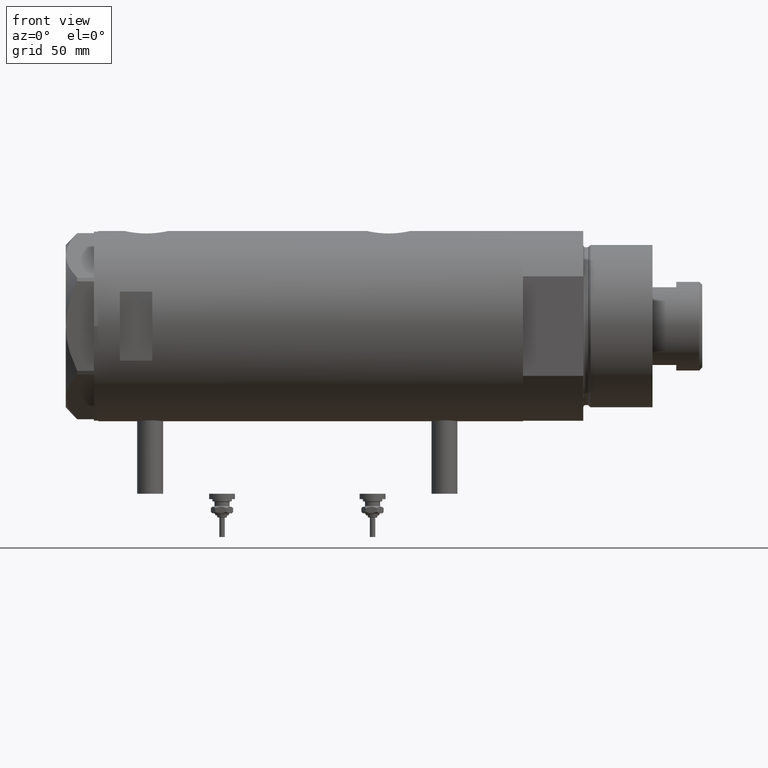
[diagram: clean part render]
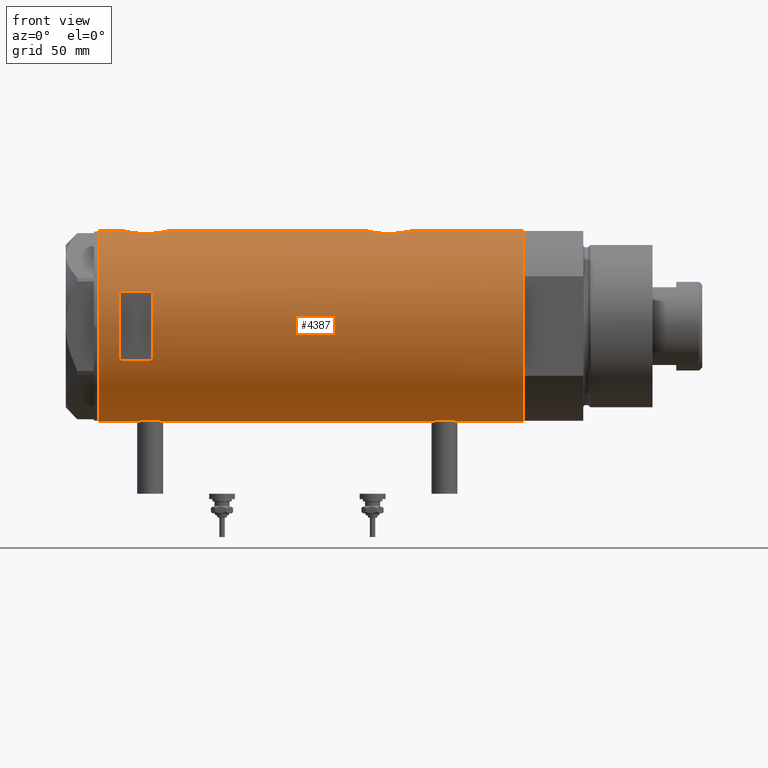
[diagram: same view with one face highlighted and labeled with its STEP entity id]
A machine part, front view. The second image highlights one B-rep face of the part: STEP entity #4387.
In plain terms, the highlighted cylindrical surface (partial cylindrical patch) has radius 44 mm, axis along (-1, -0, 0).
Its self-contained STEP definition (entity closure, byte-faithful):
#76 = CARTESIAN_POINT ( 'NONE',  ( -43.97755541524607992, -1.419649999726222633, -67.99011143923635814 ) ) ;
#81 = EDGE_CURVE ( 'NONE', #4393, #2736, #3994, .T. ) ;
#82 = B_SPLINE_CURVE_WITH_KNOTS ( 'NONE', 3,
 ( #5441, #4527, #1761, #2616, #3143, #4014, #5847, #5471, #808, #2250, #4467, #5498, #1688, #3986, #5405, #2581, #4112, #4891, #1341, #382, #1237, #3109, #779, #2647, #4046, #1307, #4433, #5021, #254, #843, #2707, #2123, #1724, #5820, #880, #1464, #1888, #2803, #2838, #4692, #3331, #4636, #3811 ),
 .UNSPECIFIED., .F., .F.,
 ( 4, 2, 2, 1, 2, 2, 2, 2, 2, 2, 2, 2, 2, 2, 2, 2, 2, 2, 2, 2, 2, 4 ),
 ( 0.01956509074799517994, 0.02078761141254040559, 0.02139887174481301668, 0.02201013207708563124, 0.02262139240935824580, 0.02323265274163085689, 0.02445517340617610336, 0.02567769407072134982, 0.02690021473526659629, 0.02751147506753922126, 0.02812273539981184622, 0.02934525606435713085, 0.03056777672890241548, 0.03117903706117506127, 0.03179029739344770011, 0.03301281805799302638, 0.03423533872253835264, 0.03545785938708367196, 0.03668038005162899129, 0.03729164038390166136, 0.03790290071617432449, 0.03912542138071965075 ),
 .UNSPECIFIED. ) ;
#98 = ORIENTED_EDGE ( 'NONE', *, *, #3480, .T. ) ;
#120 = CARTESIAN_POINT ( 'NONE',  ( 44.00000000000000000, -2.552687571866728611E-15, 65.90000000000001990 ) ) ;
#131 = FACE_OUTER_BOUND ( 'NONE', #5399, .T. ) ;
#134 = EDGE_CURVE ( 'NONE', #1921, #5651, #265, .T. ) ;
#181 = CARTESIAN_POINT ( 'NONE',  ( 43.57790701154753776, -6.104591320335877036, -28.15258699105065432 ) ) ;
#210 = CARTESIAN_POINT ( 'NONE',  ( 43.71528002050703776, -5.005885132985639530, -27.43693693285514001 ) ) ;
#226 = CARTESIAN_POINT ( 'NONE',  ( 42.84850870634926423, -10.00026508230968325, 75.24416084878259880 ) ) ;
#235 = CARTESIAN_POINT ( 'NONE',  ( 42.86761451923558042, -9.918101748202664325, -34.78132476450376487 ) ) ;
#250 = ORIENTED_EDGE ( 'NONE', *, *, #81, .F. ) ;
#254 = CARTESIAN_POINT ( 'NONE',  ( -43.64013512596971367, -5.618144550806293047, 76.96884254373171075 ) ) ;
#265 = LINE ( 'NONE', #4934, #4331 ) ;
#268 = CARTESIAN_POINT ( 'NONE',  ( 43.35257225115238100, -7.523216248090020208, -42.69605303592345535 ) ) ;
#272 = EDGE_CURVE ( 'NONE', #3015, #2469, #5073, .T. ) ;
#332 = CARTESIAN_POINT ( 'NONE',  ( 43.71626298452613923, -5.019105827807318398, -44.77413437979601696 ) ) ;
#333 = CARTESIAN_POINT ( 'NONE',  ( 44.00000000000000000, 0.000000000000000000, 98.20000000000000284 ) ) ;
#382 = CARTESIAN_POINT ( 'NONE',  ( -43.57664920749031978, -6.089110472216501257, 72.77636913130589846 ) ) ;
#436 = LINE ( 'NONE', #5584, #1711 ) ;
#503 = CARTESIAN_POINT ( 'NONE',  ( 0.000000000000000000, 0.000000000000000000, -98.20000000000000284 ) ) ;
#556 = EDGE_CURVE ( 'NONE', #3015, #838, #1359, .T. ) ;
#588 = DIRECTION ( 'NONE',  ( 0.000000000000000000, 0.000000000000000000, 1.000000000000000000 ) ) ;
#627 = CARTESIAN_POINT ( 'NONE',  ( -44.00000000000000000, -0.4134142287044832997, -55.65000000000000568 ) ) ;
#629 = CARTESIAN_POINT ( 'NONE',  ( 44.00000000000000000, -0.6537011444665530302, -26.10000000000000142 ) ) ;
#664 = CARTESIAN_POINT ( 'NONE',  ( -44.00000000000000000, 6.472851849715296073E-16, -55.65000000000000568 ) ) ;
#666 = CARTESIAN_POINT ( 'NONE',  ( 43.98543813568862504, -1.304985013906736047, -26.16346933726120128 ) ) ;
#685 = CARTESIAN_POINT ( 'NONE',  ( 43.88549648731375896, -3.229309612650779204, 85.38664302486387214 ) ) ;
#694 = CARTESIAN_POINT ( 'NONE',  ( -43.71863308610075904, -4.973248429199021992, -58.09262209878829708 ) ) ;
#696 = CARTESIAN_POINT ( 'NONE',  ( 43.13689707656754990, -8.680169016269179139, -41.10836902111201141 ) ) ;
#699 = ORIENTED_EDGE ( 'NONE', *, *, #4790, .F. ) ;
#713 = CARTESIAN_POINT ( 'NONE',  ( 43.39114022679083860, -7.298186114522533074, 82.74417279492062960 ) ) ;
#722 = CARTESIAN_POINT ( 'NONE',  ( 42.92612181419236350, -9.662173761604314848, -33.50200210390286770 ) ) ;
#736 = DIRECTION ( 'NONE',  ( -0.000000000000000000, -0.000000000000000000, -1.000000000000000000 ) ) ;
#749 = CARTESIAN_POINT ( 'NONE',  ( 43.46477581456304051, -6.845969322274853219, 68.60355539876688624 ) ) ;
#761 = CARTESIAN_POINT ( 'NONE',  ( -43.55964145621771877, -6.209995197331135586, -61.08476386616428755 ) ) ;
#779 = CARTESIAN_POINT ( 'NONE',  ( -43.55380622335315621, -6.250277076879243943, 74.60889833390194781 ) ) ;
#781 = CARTESIAN_POINT ( 'NONE',  ( 42.99316244204496940, -9.359736474891654723, 79.43603020032176687 ) ) ;
#808 = CARTESIAN_POINT ( 'NONE',  ( -43.88927795770375440, -3.124736516396337649, 68.78332595076192035 ) ) ;
#821 = ORIENTED_EDGE ( 'NONE', *, *, #134, .F. ) ;
#838 = VERTEX_POINT ( 'NONE', #120 ) ;
#843 = CARTESIAN_POINT ( 'NONE',  ( -43.66469451360045895, -5.426465874727613325, 77.32774591864212255 ) ) ;
#844 = CARTESIAN_POINT ( 'NONE',  ( 43.98503203903423753, -1.316644100880406176, 65.96527044704370724 ) ) ;
#880 = CARTESIAN_POINT ( 'NONE',  ( -43.88932649443422918, -3.137583818903199262, 79.62099038059545819 ) ) ;
#958 = CARTESIAN_POINT ( 'NONE',  ( -43.83572624786197736, -3.813948911733276770, -66.86836430220661498 ) ) ;
#1010 = CARTESIAN_POINT ( 'NONE',  ( -15.96871942267132027, -40.99999999999999289, 73.19999999999998863 ) ) ;
#1040 = EDGE_CURVE ( 'NONE', #4258, #3371, #5813, .T. ) ;
#1041 = CARTESIAN_POINT ( 'NONE',  ( -43.93596008603759628, -2.395372424984031579, -67.68349180530614717 ) ) ;
#1092 = EDGE_CURVE ( 'NONE', #3717, #3193, #436, .T. ) ;
#1095 = CARTESIAN_POINT ( 'NONE',  ( -43.58327167020068060, -6.041691433183244975, -60.28672449216637119 ) ) ;
#1118 = CARTESIAN_POINT ( 'NONE',  ( -43.97029046111978090, -1.628482392291950687, -55.86241380207945184 ) ) ;
#1120 = CARTESIAN_POINT ( 'NONE',  ( 43.07447880731469780, -8.980869115410040848, -31.65290029795897553 ) ) ;
#1159 = CARTESIAN_POINT ( 'NONE',  ( 42.92195198079053853, -9.681069926205545073, -38.68932500906514349 ) ) ;
#1185 = CARTESIAN_POINT ( 'NONE',  ( -43.58358352828438598, -6.039443007521659190, -63.52163098385739204 ) ) ;
#1201 = CARTESIAN_POINT ( 'NONE',  ( 43.35323102813806173, -7.519449998269472246, 82.50042289284266417 ) ) ;
#1232 = ORIENTED_EDGE ( 'NONE', *, *, #1040, .F. ) ;
#1237 = CARTESIAN_POINT ( 'NONE',  ( -43.55981666146650610, -6.208773019004409477, 73.37562000806383367 ) ) ;
#1307 = CARTESIAN_POINT ( 'NONE',  ( -43.58327167020068060, -6.041691433183235205, 75.81327550783366576 ) ) ;
#1308 = CARTESIAN_POINT ( 'NONE',  ( 43.92391465552169194, -2.605621203777309436, 66.23981984898223629 ) ) ;
#1312 = VERTEX_POINT ( 'NONE', #4717 ) ;
#1317 = CARTESIAN_POINT ( 'NONE',  ( 43.50208939911752992, -6.605519787823889821, -43.61487246254434069 ) ) ;
#1341 = CARTESIAN_POINT ( 'NONE',  ( -43.58358352828439308, -6.039443007521657414, 72.57836901614263070 ) ) ;
#1359 = B_SPLINE_CURVE_WITH_KNOTS ( 'NONE', 3,
 ( #4960, #4864, #3145, #3050, #685, #1660, #5881, #3526, #2558, #2649, #2583, #713, #1201, #4048, #1726, #2151, #2126, #781, #4990, #2674, #4529, #2220, #5848, #4409, #226, #3112, #5923, #3463, #2093, #5324, #3988, #5381, #3954, #4921, #749, #2618, #5096, #1892, #5949, #4115, #5472, #1794, #1308, #4694, #844, #3299, #2285 ),
 .UNSPECIFIED., .F., .F.,
 ( 4, 2, 2, 2, 2, 2, 2, 2, 2, 2, 1, 2, 2, 2, 2, 2, 2, 2, 2, 2, 2, 2, 2, 4 ),
 ( 0.03136730421198213881, 0.03332724096696806915, 0.03528717772195399949, 0.03626714609944696466, 0.03724711447693992289, 0.03920705123192585323, 0.04018701960941880452, 0.04116698798691175581, 0.04312692474189768616, 0.04410689311939065826, 0.04508686149688362343, 0.04606682987437659554, 0.04704679825186956071, 0.04900673500685545636, 0.05096667176184135201, 0.05292660851682724765, 0.05390657689432017119, 0.05488654527181310167, 0.05586651364930603214, 0.05684648202679896262, 0.05880641878178481663, 0.05978638715927775404, 0.06076635553677069146, 0.06272629229175656629 ),
 .UNSPECIFIED. ) ;
#1389 = CARTESIAN_POINT ( 'NONE',  ( 43.57553740812845433, -6.102230194686617537, -44.02899655988669281 ) ) ;
#1412 = DIRECTION ( 'NONE',  ( 0.000000000000000000, 0.000000000000000000, 1.000000000000000000 ) ) ;
#1464 = CARTESIAN_POINT ( 'NONE',  ( -43.91398925748691084, -2.775454910411443876, 79.81470775681063401 ) ) ;
#1478 = DIRECTION ( 'NONE',  ( 1.000000000000000000, 0.000000000000000000, 0.000000000000000000 ) ) ;
#1497 = CARTESIAN_POINT ( 'NONE',  ( 44.00000000000000000, 0.000000000000000000, -98.20000000000000284 ) ) ;
#1551 = CARTESIAN_POINT ( 'NONE',  ( -43.80623767923739820, -4.134861581628535454, -57.19563632739305348 ) ) ;
#1579 = CARTESIAN_POINT ( 'NONE',  ( 43.50370990764397305, -6.606474645717125505, -28.56479064715112415 ) ) ;
#1610 = CARTESIAN_POINT ( 'NONE',  ( 42.85249883256044257, -9.983208936152879076, -35.43427783458178482 ) ) ;
#1624 = CIRCLE ( 'NONE', #4077, 44.00000000000000000 ) ;
#1645 = EDGE_CURVE ( 'NONE', #2736, #4813, #82, .T. ) ;
#1653 = CARTESIAN_POINT ( 'NONE',  ( -15.96871942267132027, -40.99999999999999289, -98.20000000000000284 ) ) ;
#1660 = CARTESIAN_POINT ( 'NONE',  ( 43.80655905412562134, -4.132395729537633677, 85.01205326193762346 ) ) ;
#1672 = CARTESIAN_POINT ( 'NONE',  ( 43.13833976206234411, -8.672905216733560962, -31.07967078979186937 ) ) ;
#1688 = CARTESIAN_POINT ( 'NONE',  ( -43.74870614644074607, -4.704745394280565485, 70.06553512659976946 ) ) ;
#1711 = VECTOR ( 'NONE', #4170, 1000.000000000000000 ) ;
#1724 = CARTESIAN_POINT ( 'NONE',  ( -43.80623767923739109, -4.134861581628527460, 78.90436367260696215 ) ) ;
#1726 = CARTESIAN_POINT ( 'NONE',  ( 43.24269204559828950, -8.130405600641543273, 81.73114502806993187 ) ) ;
#1761 = CARTESIAN_POINT ( 'NONE',  ( -43.99432382855034973, -0.8140126287075730716, 67.98957833183088439 ) ) ;
#1794 = CARTESIAN_POINT ( 'NONE',  ( 43.88203303552251100, -3.235230624304767932, 66.43207386936018111 ) ) ;
#1839 = CARTESIAN_POINT ( 'NONE',  ( 43.85817087158035577, -3.542878095418167117, -45.45703661115526018 ) ) ;
#1888 = CARTESIAN_POINT ( 'NONE',  ( -43.94477385411916970, -2.211843467998029666, 80.04907229922866918 ) ) ;
#1892 = CARTESIAN_POINT ( 'NONE',  ( 43.61181667275830165, -5.838254419127787642, 67.77455890582506015 ) ) ;
#1921 = VERTEX_POINT ( 'NONE', #4782 ) ;
#1940 = CARTESIAN_POINT ( 'NONE',  ( -43.95442538259509746, -2.011679190499027658, -67.82093546509783266 ) ) ;
#1967 = CARTESIAN_POINT ( 'NONE',  ( -44.00000000000000000, 6.472851849715296073E-16, -55.65000000000000568 ) ) ;
#1980 = CARTESIAN_POINT ( 'NONE',  ( -44.00000000000000000, 4.742435893011557518E-16, 80.45000000000001705 ) ) ;
#1988 = LINE ( 'NONE', #2441, #5415 ) ;
#2010 = CARTESIAN_POINT ( 'NONE',  ( -43.99999999999999289, -0.4080709675389172508, -68.15000000000001990 ) ) ;
#2041 = CARTESIAN_POINT ( 'NONE',  ( -43.88932649443424339, -3.137583818903205479, -56.47900961940456455 ) ) ;
#2072 = CARTESIAN_POINT ( 'NONE',  ( 42.99316244204496229, -9.359736474891656499, -32.56396979967825445 ) ) ;
#2081 = ORIENTED_EDGE ( 'NONE', *, *, #3878, .T. ) ;
#2093 = CARTESIAN_POINT ( 'NONE',  ( 43.07321175413309078, -8.986876637256992595, 71.46571798011245846 ) ) ;
#2095 = ORIENTED_EDGE ( 'NONE', *, *, #3859, .F. ) ;
#2102 = CARTESIAN_POINT ( 'NONE',  ( -43.64013512596970656, -5.618144550806301041, -59.13115745626835462 ) ) ;
#2123 = CARTESIAN_POINT ( 'NONE',  ( -43.74813644611199948, -4.709999724143497879, 78.32844043943227064 ) ) ;
#2126 = CARTESIAN_POINT ( 'NONE',  ( 43.07447880731470491, -8.980869115410039072, 80.34709970204103513 ) ) ;
#2151 = CARTESIAN_POINT ( 'NONE',  ( 43.13833976206234411, -8.672905216733555633, 80.92032921020813774 ) ) ;
#2173 = EDGE_LOOP ( 'NONE', ( #699, #1232, #5423, #821 ) ) ;
#2193 = VECTOR ( 'NONE', #5419, 1000.000000000000000 ) ;
#2219 = AXIS2_PLACEMENT_3D ( 'NONE', #2759, #3641, #3256 ) ;
#2220 = CARTESIAN_POINT ( 'NONE',  ( 42.86761451923558042, -9.918101748202658996, 77.21867523549629198 ) ) ;
#2250 = CARTESIAN_POINT ( 'NONE',  ( -43.87623998657198143, -3.302247739865014964, 68.88965656480259270 ) ) ;
#2285 = CARTESIAN_POINT ( 'NONE',  ( 44.00000000000000000, -2.552687571866728611E-15, 65.90000000000001990 ) ) ;
#2371 = DIRECTION ( 'NONE',  ( 0.000000000000000000, 0.000000000000000000, 1.000000000000000000 ) ) ;
#2434 = FACE_BOUND ( 'NONE', #2173, .T. ) ;
#2441 = CARTESIAN_POINT ( 'NONE',  ( -44.00000000000000000, 5.388445916248353619E-15, -98.20000000000000284 ) ) ;
#2452 = CARTESIAN_POINT ( 'NONE',  ( 0.000000000000000000, 0.000000000000000000, 73.20000000000018758 ) ) ;
#2469 = VERTEX_POINT ( 'NONE', #333 ) ;
#2490 = ORIENTED_EDGE ( 'NONE', *, *, #556, .F. ) ;
#2504 = CARTESIAN_POINT ( 'NONE',  ( -43.60943079847653792, -5.850114217193380206, -64.10921875926608493 ) ) ;
#2506 = CARTESIAN_POINT ( 'NONE',  ( 43.92776409818817740, -2.602555515054472579, -26.42196650712919137 ) ) ;
#2520 = EDGE_CURVE ( 'NONE', #5651, #4258, #5327, .T. ) ;
#2536 = CARTESIAN_POINT ( 'NONE',  ( 43.80655905412561424, -4.132395729537631901, -26.98794673806236943 ) ) ;
#2552 = ORIENTED_EDGE ( 'NONE', *, *, #272, .T. ) ;
#2558 = CARTESIAN_POINT ( 'NONE',  ( 43.68175117880464597, -5.289576318274436417, 84.39277543291558459 ) ) ;
#2563 = CARTESIAN_POINT ( 'NONE',  ( -43.95404166778756405, -2.020054257598463021, -55.98191054514349929 ) ) ;
#2581 = CARTESIAN_POINT ( 'NONE',  ( -43.64064219598290606, -5.614224114468902904, 71.42314510380529669 ) ) ;
#2583 = CARTESIAN_POINT ( 'NONE',  ( 43.50370990764397305, -6.606474645717129945, 83.43520935284888651 ) ) ;
#2592 = CARTESIAN_POINT ( 'NONE',  ( 43.24192112218942441, -8.134529092006106410, -41.92552229864112689 ) ) ;
#2598 = AXIS2_PLACEMENT_3D ( 'NONE', #3261, #5115, #4744 ) ;
#2613 = VECTOR ( 'NONE', #3310, 1000.000000000000000 ) ;
#2616 = CARTESIAN_POINT ( 'NONE',  ( -43.97755541524606571, -1.419649999726221967, 68.10988856076365039 ) ) ;
#2618 = CARTESIAN_POINT ( 'NONE',  ( 43.50208939911752992, -6.605519787823896927, 68.38512753745570194 ) ) ;
#2629 = CARTESIAN_POINT ( 'NONE',  ( -43.60904414879379232, -5.852991024272610865, -59.69843683347092878 ) ) ;
#2647 = CARTESIAN_POINT ( 'NONE',  ( -43.55964145621772587, -6.209995197331129368, 75.01523613383574229 ) ) ;
#2649 = CARTESIAN_POINT ( 'NONE',  ( 43.57790701154752355, -6.104591320335877036, 83.84741300894935989 ) ) ;
#2651 = CARTESIAN_POINT ( 'NONE',  ( -44.00000000000000000, 5.388445781982983516E-15, 67.95000000000001705 ) ) ;
#2674 = CARTESIAN_POINT ( 'NONE',  ( 42.92612181419236350, -9.662173761604313071, 78.49799789609716072 ) ) ;
#2707 = CARTESIAN_POINT ( 'NONE',  ( -43.71863308610073773, -4.973248429199020215, 78.00737790121172566 ) ) ;
#2736 = VERTEX_POINT ( 'NONE', #2651 ) ;
#2755 = CARTESIAN_POINT ( 'NONE',  ( 44.00000000000000000, 2.836945177865671897E-15, -46.10000000000000853 ) ) ;
#2759 = CARTESIAN_POINT ( 'NONE',  ( 0.000000000000000000, 0.000000000000000000, 88.20000000000000284 ) ) ;
#2803 = CARTESIAN_POINT ( 'NONE',  ( -43.95404166778755695, -2.020054257598466574, 80.11808945485654476 ) ) ;
#2825 = CARTESIAN_POINT ( 'NONE',  ( -43.80686114384899810, -4.128296917151115686, -66.61015855128312069 ) ) ;
#2838 = CARTESIAN_POINT ( 'NONE',  ( -43.97029046111977379, -1.628482392291957126, 80.23758619792059221 ) ) ;
#2859 = B_SPLINE_CURVE_WITH_KNOTS ( 'NONE', 3,
 ( #3124, #629, #666, #2506, #5742, #2536, #4392, #210, #4359, #181, #1579, #3446, #3031, #5301, #4873, #1672, #1120, #2072, #3933, #722, #5768, #235, #1610, #3476, #5831, #5331, #1159, #3964, #3536, #696, #2592, #5801, #268, #3155, #4511, #1317, #1389, #5040, #332, #4154, #1839, #5000, #3707, #4971, #5549, #3607, #2755 ),
 .UNSPECIFIED., .F., .F.,
 ( 4, 2, 2, 2, 2, 2, 2, 2, 2, 2, 1, 2, 2, 2, 2, 2, 2, 2, 2, 2, 2, 2, 2, 4 ),
 ( 0.03136730421198216656, 0.03332724096696806915, 0.03528717772195397173, 0.03626714609944691609, 0.03724711447693986738, 0.03920705123192576302, 0.04018701960941871432, 0.04116698798691166561, 0.04312692474189756126, 0.04410689311939051255, 0.04508686149688346384, 0.04606682987437641513, 0.04704679825186936643, 0.04900673500685526207, 0.05096667176184117160, 0.05292660851682706724, 0.05390657689432003241, 0.05488654527181299758, 0.05586651364930595581, 0.05684648202679891404, 0.05880641878178481663, 0.05978638715927777486, 0.06076635553677073309, 0.06272629229175663568 ),
 .UNSPECIFIED. ) ;
#2860 = DIRECTION ( 'NONE',  ( 1.000000000000000000, 0.000000000000000000, 0.000000000000000000 ) ) ;
#3015 = VERTEX_POINT ( 'NONE', #5101 ) ;
#3031 = CARTESIAN_POINT ( 'NONE',  ( 43.35323102813807594, -7.519449998269473134, -29.49957710715733583 ) ) ;
#3050 = CARTESIAN_POINT ( 'NONE',  ( 43.92776409818818451, -2.602555515054472135, 85.57803349287081573 ) ) ;
#3093 = CIRCLE ( 'NONE', #5993, 44.00000000000000000 ) ;
#3109 = CARTESIAN_POINT ( 'NONE',  ( -43.55388615229803406, -6.249720082677240107, 73.78267485888017063 ) ) ;
#3112 = CARTESIAN_POINT ( 'NONE',  ( 42.86369059155248351, -9.935849517229275563, 74.59362589981802216 ) ) ;
#3124 = CARTESIAN_POINT ( 'NONE',  ( 44.00000000000000000, -3.917142467416489149E-21, -26.10000000000000497 ) ) ;
#3143 = CARTESIAN_POINT ( 'NONE',  ( -43.97059312650996787, -1.620278982928820888, 68.16021308614129737 ) ) ;
#3145 = CARTESIAN_POINT ( 'NONE',  ( 43.98543813568861793, -1.304985013906736713, 85.83653066273880938 ) ) ;
#3155 = CARTESIAN_POINT ( 'NONE',  ( 43.39001814939471302, -7.304817421876454553, -42.93703460671677163 ) ) ;
#3193 = VERTEX_POINT ( 'NONE', #3223 ) ;
#3223 = CARTESIAN_POINT ( 'NONE',  ( 44.00000000000000000, 2.836945177865671897E-15, -46.10000000000000853 ) ) ;
#3256 = DIRECTION ( 'NONE',  ( 1.000000000000000000, 0.000000000000000000, 0.000000000000000000 ) ) ;
#3261 = CARTESIAN_POINT ( 'NONE',  ( 0.000000000000000000, 0.000000000000000000, 98.20000000000000284 ) ) ;
#3284 = CARTESIAN_POINT ( 'NONE',  ( -43.88927795770375440, -3.124736516396334096, -67.31667404923810238 ) ) ;
#3299 = CARTESIAN_POINT ( 'NONE',  ( 43.99999999999998579, -0.6628808997490068800, 65.89999999999999147 ) ) ;
#3310 = DIRECTION ( 'NONE',  ( 0.000000000000000000, 0.000000000000000000, 1.000000000000000000 ) ) ;
#3331 = CARTESIAN_POINT ( 'NONE',  ( -43.99417593155912698, -0.8219945290704717689, 80.40938102412962962 ) ) ;
#3340 = CARTESIAN_POINT ( 'NONE',  ( -44.00000000000000000, 5.388445916248353619E-15, -98.20000000000000284 ) ) ;
#3345 = CARTESIAN_POINT ( 'NONE',  ( -43.91347832647109328, -2.763895659397266780, -67.50938649377584966 ) ) ;
#3361 = VERTEX_POINT ( 'NONE', #5509 ) ;
#3366 = CARTESIAN_POINT ( 'NONE',  ( -43.97059312650997498, -1.620278982928825551, -67.93978691385872537 ) ) ;
#3368 = ORIENTED_EDGE ( 'NONE', *, *, #1645, .F. ) ;
#3369 = VECTOR ( 'NONE', #1412, 1000.000000000000000 ) ;
#3371 = VERTEX_POINT ( 'NONE', #1010 ) ;
#3384 = B_SPLINE_CURVE_WITH_KNOTS ( 'NONE', 3,
 ( #4711, #2010, #5578, #76, #3366, #1940, #1041, #3345, #3284, #5140, #958, #2825, #3904, #3535, #5358, #4935, #2504, #5719, #1185, #4357, #4899, #3996, #5830, #761, #4477, #1095, #3506, #2629, #2102, #3962, #694, #4415, #1551, #5799, #2041, #5298, #5387, #2563, #1118, #5329, #5741, #627, #664 ),
 .UNSPECIFIED., .F., .F.,
 ( 4, 2, 2, 1, 2, 2, 2, 2, 2, 2, 2, 2, 2, 2, 2, 2, 2, 2, 2, 2, 2, 4 ),
 ( 0.01956509074799518341, 0.02078761141254042641, 0.02139887174481304791, 0.02201013207708566941, 0.02262139240935828743, 0.02323265274163090893, 0.02445517340617617622, 0.02567769407072143656, 0.02690021473526670037, 0.02751147506753932881, 0.02812273539981196072, 0.02934525606435726269, 0.03056777672890254385, 0.03117903706117519658, 0.03179029739344783889, 0.03301281805799314434, 0.03423533872253844978, 0.03545785938708374829, 0.03668038005162904680, 0.03729164038390170299, 0.03790290071617435919, 0.03912542138071965769 ),
 .UNSPECIFIED. ) ;
#3446 = CARTESIAN_POINT ( 'NONE',  ( 43.39114022679083860, -7.298186114522533963, -29.25582720507938816 ) ) ;
#3463 = CARTESIAN_POINT ( 'NONE',  ( 42.96573602780768653, -9.487415353952515673, 72.67265455416382736 ) ) ;
#3467 = EDGE_CURVE ( 'NONE', #3361, #1312, #3760, .T. ) ;
#3476 = CARTESIAN_POINT ( 'NONE',  ( 42.84860178791321772, -9.999866241079299556, -35.76603617305837446 ) ) ;
#3480 = EDGE_CURVE ( 'NONE', #3853, #838, #4371, .T. ) ;
#3505 = CARTESIAN_POINT ( 'NONE',  ( -44.00000000000000000, 5.388445916248353619E-15, -98.20000000000000284 ) ) ;
#3506 = CARTESIAN_POINT ( 'NONE',  ( -43.59959777593761032, -5.922725608094079774, -59.89350688782584342 ) ) ;
#3526 = CARTESIAN_POINT ( 'NONE',  ( 43.71528002050701645, -5.005885132985640418, 84.56306306714488130 ) ) ;
#3535 = CARTESIAN_POINT ( 'NONE',  ( -43.71916086763248899, -4.968610719017474864, -65.71335998854627292 ) ) ;
#3536 = CARTESIAN_POINT ( 'NONE',  ( 43.07321175413309788, -8.986876637256999700, -40.53428201988752733 ) ) ;
#3607 = CARTESIAN_POINT ( 'NONE',  ( 44.00000000000000000, -0.6628808997490056587, -46.10000000000000853 ) ) ;
#3641 = DIRECTION ( 'NONE',  ( -0.000000000000000000, 0.000000000000000000, -1.000000000000000000 ) ) ;
#3674 = VERTEX_POINT ( 'NONE', #5396 ) ;
#3703 = CARTESIAN_POINT ( 'NONE',  ( 44.00000000000000000, 0.000000000000000000, -98.20000000000000284 ) ) ;
#3707 = CARTESIAN_POINT ( 'NONE',  ( 43.92391465552167773, -2.605621203777293893, -45.76018015101779923 ) ) ;
#3717 = VERTEX_POINT ( 'NONE', #3745 ) ;
#3745 = CARTESIAN_POINT ( 'NONE',  ( 44.00000000000000000, 0.000000000000000000, -98.20000000000000284 ) ) ;
#3760 = LINE ( 'NONE', #3340, #2613 ) ;
#3801 = CARTESIAN_POINT ( 'NONE',  ( 0.000000000000000000, 0.000000000000000000, -98.20000000000000284 ) ) ;
#3811 = CARTESIAN_POINT ( 'NONE',  ( -44.00000000000000000, 4.742435893011557518E-16, 80.45000000000001705 ) ) ;
#3832 = EDGE_CURVE ( 'NONE', #3674, #2469, #4930, .T. ) ;
#3853 = VERTEX_POINT ( 'NONE', #4716 ) ;
#3859 = EDGE_CURVE ( 'NONE', #4813, #3674, #1988, .T. ) ;
#3878 = EDGE_CURVE ( 'NONE', #3361, #3717, #3093, .T. ) ;
#3904 = CARTESIAN_POINT ( 'NONE',  ( -43.74870614644073896, -4.704745394280569037, -66.03446487340026749 ) ) ;
#3933 = CARTESIAN_POINT ( 'NONE',  ( 42.96858625215908489, -9.471543237354845601, -32.87555220689220903 ) ) ;
#3954 = CARTESIAN_POINT ( 'NONE',  ( 43.35257225115238100, -7.523216248090028202, 69.30394696407655886 ) ) ;
#3962 = CARTESIAN_POINT ( 'NONE',  ( -43.66469451360047316, -5.426465874727620431, -58.77225408135789309 ) ) ;
#3964 = CARTESIAN_POINT ( 'NONE',  ( 42.96573602780769363, -9.487415353952522779, -39.32734544583617264 ) ) ;
#3986 = CARTESIAN_POINT ( 'NONE',  ( -43.71916086763248899, -4.968610719017467758, 70.38664001145374982 ) ) ;
#3988 = CARTESIAN_POINT ( 'NONE',  ( 43.24192112218943151, -8.134529092006102857, 70.07447770135895837 ) ) ;
#3994 = LINE ( 'NONE', #3505, #2193 ) ;
#3996 = CARTESIAN_POINT ( 'NONE',  ( -43.55388615229803406, -6.249720082677246324, -62.31732514111985211 ) ) ;
#4014 = CARTESIAN_POINT ( 'NONE',  ( -43.95442538259509746, -2.011679190499023662, 68.27906453490220429 ) ) ;
#4024 = DIRECTION ( 'NONE',  ( 0.000000000000000000, 0.000000000000000000, 1.000000000000000000 ) ) ;
#4046 = CARTESIAN_POINT ( 'NONE',  ( -43.57636709704394917, -6.091127289750676077, 75.61499325660989257 ) ) ;
#4048 = CARTESIAN_POINT ( 'NONE',  ( 43.27890888111421930, -7.936045294464972422, 81.99318436657195264 ) ) ;
#4077 = AXIS2_PLACEMENT_3D ( 'NONE', #2452, #5246, #4761 ) ;
#4112 = CARTESIAN_POINT ( 'NONE',  ( -43.60943079847655213, -5.850114217193378430, 71.99078124073398044 ) ) ;
#4115 = CARTESIAN_POINT ( 'NONE',  ( 43.77905627191560001, -4.445085099228551329, 66.91859165683969479 ) ) ;
#4133 = CARTESIAN_POINT ( 'NONE',  ( -15.96871942267132027, -40.99999999999999289, 88.20000000000000284 ) ) ;
#4154 = CARTESIAN_POINT ( 'NONE',  ( 43.77905627191557869, -4.445085099228542447, -45.08140834316034073 ) ) ;
#4170 = DIRECTION ( 'NONE',  ( 0.000000000000000000, 0.000000000000000000, 1.000000000000000000 ) ) ;
#4258 = VERTEX_POINT ( 'NONE', #4133 ) ;
#4286 = CYLINDRICAL_SURFACE ( 'NONE', #6006, 44.00000000000000000 ) ;
#4331 = VECTOR ( 'NONE', #4024, 1000.000000000000000 ) ;
#4357 = CARTESIAN_POINT ( 'NONE',  ( -43.57664920749032689, -6.089110472216507475, -63.32363086869416691 ) ) ;
#4359 = CARTESIAN_POINT ( 'NONE',  ( 43.68175117880464597, -5.289576318274432865, -27.60722456708441896 ) ) ;
#4371 = LINE ( 'NONE', #1497, #5778 ) ;
#4387 = ADVANCED_FACE ( 'NONE', ( #131, #2434 ), #4286, .T. ) ;
#4392 = CARTESIAN_POINT ( 'NONE',  ( 43.77763691689010983, -4.427538730370036646, -27.12757287791930239 ) ) ;
#4393 = VERTEX_POINT ( 'NONE', #1967 ) ;
#4409 = CARTESIAN_POINT ( 'NONE',  ( 42.84860178791322483, -9.999866241079296003, 76.23396382694163265 ) ) ;
#4415 = CARTESIAN_POINT ( 'NONE',  ( -43.74813644611201369, -4.709999724143506761, -57.77155956056775210 ) ) ;
#4433 = CARTESIAN_POINT ( 'NONE',  ( -43.59959777593760322, -5.922725608094071781, 76.20649311217414379 ) ) ;
#4457 = EDGE_CURVE ( 'NONE', #1312, #4393, #3384, .T. ) ;
#4467 = CARTESIAN_POINT ( 'NONE',  ( -43.83572624786197025, -3.813948911733268776, 69.23163569779342197 ) ) ;
#4477 = CARTESIAN_POINT ( 'NONE',  ( -43.57636709704395628, -6.091127289750679630, -60.48500674339015148 ) ) ;
#4511 = CARTESIAN_POINT ( 'NONE',  ( 43.46477581456304051, -6.845969322274839008, -43.39644460123313507 ) ) ;
#4527 = CARTESIAN_POINT ( 'NONE',  ( -44.00000000000001421, -0.4080709675389184166, 67.95000000000001705 ) ) ;
#4529 = CARTESIAN_POINT ( 'NONE',  ( 42.89003040145177437, -9.821289533110931558, 77.86491628329994796 ) ) ;
#4636 = CARTESIAN_POINT ( 'NONE',  ( -44.00000000000000711, -0.4134142287044808017, 80.45000000000004547 ) ) ;
#4692 = CARTESIAN_POINT ( 'NONE',  ( -43.97729452866927602, -1.427712738744854715, 80.28822907443425549 ) ) ;
#4694 = CARTESIAN_POINT ( 'NONE',  ( 43.94187300917955241, -2.283844398366610129, 66.15873953182952505 ) ) ;
#4703 = DIRECTION ( 'NONE',  ( 0.000000000000000000, 0.000000000000000000, 1.000000000000000000 ) ) ;
#4711 = CARTESIAN_POINT ( 'NONE',  ( -44.00000000000000000, 5.388445781992449847E-15, -68.15000000000001990 ) ) ;
#4716 = CARTESIAN_POINT ( 'NONE',  ( 44.00000000000000000, -3.917142467416489149E-21, -26.10000000000000497 ) ) ;
#4717 = CARTESIAN_POINT ( 'NONE',  ( -44.00000000000000000, 5.388445781992449847E-15, -68.15000000000001990 ) ) ;
#4744 = DIRECTION ( 'NONE',  ( 1.000000000000000000, 0.000000000000000000, 0.000000000000000000 ) ) ;
#4761 = DIRECTION ( 'NONE',  ( 1.776356839400250465E-15, 1.000000000000000000, 4.731064025391292434E-15 ) ) ;
#4782 = CARTESIAN_POINT ( 'NONE',  ( 15.96871942267132027, -40.99999999999999289, 73.19999999999998863 ) ) ;
#4790 = EDGE_CURVE ( 'NONE', #3371, #1921, #1624, .T. ) ;
#4813 = VERTEX_POINT ( 'NONE', #1980 ) ;
#4864 = CARTESIAN_POINT ( 'NONE',  ( 44.00000000000000000, -0.6537011444665535853, 85.90000000000001990 ) ) ;
#4873 = CARTESIAN_POINT ( 'NONE',  ( 43.24269204559828239, -8.130405600641552155, -30.26885497193005392 ) ) ;
#4874 = ORIENTED_EDGE ( 'NONE', *, *, #5631, .F. ) ;
#4891 = CARTESIAN_POINT ( 'NONE',  ( -43.59994860325051036, -5.920144153815573240, 72.18593642430241175 ) ) ;
#4899 = CARTESIAN_POINT ( 'NONE',  ( -43.55981666146652742, -6.208773019004414806, -62.72437999193618197 ) ) ;
#4921 = CARTESIAN_POINT ( 'NONE',  ( 43.39001814939472013, -7.304817421876465211, 69.06296539328327810 ) ) ;
#4930 = CIRCLE ( 'NONE', #2598, 44.00000000000000000 ) ;
#4934 = CARTESIAN_POINT ( 'NONE',  ( 15.96871942267132027, -40.99999999999999289, -98.20000000000000284 ) ) ;
#4935 = CARTESIAN_POINT ( 'NONE',  ( -43.64064219598292027, -5.614224114468902904, -64.67685489619476868 ) ) ;
#4960 = CARTESIAN_POINT ( 'NONE',  ( 44.00000000000000000, -3.917104602093038540E-21, 85.90000000000000568 ) ) ;
#4971 = CARTESIAN_POINT ( 'NONE',  ( 43.94187300917954531, -2.283844398366604356, -45.84126046817048916 ) ) ;
#4990 = CARTESIAN_POINT ( 'NONE',  ( 42.96858625215907779, -9.471543237354833167, 79.12444779310783360 ) ) ;
#5000 = CARTESIAN_POINT ( 'NONE',  ( 43.88203303552249679, -3.235230624304758162, -45.56792613063984732 ) ) ;
#5021 = CARTESIAN_POINT ( 'NONE',  ( -43.60904414879379942, -5.852991024272603759, 76.40156316652908686 ) ) ;
#5040 = CARTESIAN_POINT ( 'NONE',  ( 43.61181667275832297, -5.838254419127783201, -44.22544109417496117 ) ) ;
#5073 = LINE ( 'NONE', #3703, #3369 ) ;
#5096 = CARTESIAN_POINT ( 'NONE',  ( 43.57553740812844723, -6.102230194686623754, 67.97100344011332140 ) ) ;
#5101 = CARTESIAN_POINT ( 'NONE',  ( 44.00000000000000000, -3.917104602093038540E-21, 85.90000000000000568 ) ) ;
#5115 = DIRECTION ( 'NONE',  ( 0.000000000000000000, 0.000000000000000000, 1.000000000000000000 ) ) ;
#5140 = CARTESIAN_POINT ( 'NONE',  ( -43.87623998657198143, -3.302247739865023846, -67.21034343519744425 ) ) ;
#5210 = ORIENTED_EDGE ( 'NONE', *, *, #3467, .F. ) ;
#5226 = VECTOR ( 'NONE', #736, 1000.000000000000000 ) ;
#5246 = DIRECTION ( 'NONE',  ( -0.000000000000000000, -4.625929269271481378E-15, 1.000000000000000000 ) ) ;
#5298 = CARTESIAN_POINT ( 'NONE',  ( -43.91398925748693216, -2.775454910411439879, -56.28529224318937452 ) ) ;
#5301 = CARTESIAN_POINT ( 'NONE',  ( 43.27890888111421219, -7.936045294464970645, -30.00681563342805092 ) ) ;
#5324 = CARTESIAN_POINT ( 'NONE',  ( 43.13689707656755701, -8.680169016269172033, 70.89163097888800280 ) ) ;
#5327 = CIRCLE ( 'NONE', #2219, 44.00000000000000000 ) ;
#5329 = CARTESIAN_POINT ( 'NONE',  ( -43.97729452866929023, -1.427712738744857601, -55.81177092556577435 ) ) ;
#5331 = CARTESIAN_POINT ( 'NONE',  ( 42.86369059155246930, -9.935849517229275563, -37.40637410018199205 ) ) ;
#5358 = CARTESIAN_POINT ( 'NONE',  ( -43.66524845950888789, -5.422010366683141847, -65.03538043352979514 ) ) ;
#5381 = CARTESIAN_POINT ( 'NONE',  ( 43.27861175590267351, -7.937636171351968528, 69.80897132009005190 ) ) ;
#5387 = CARTESIAN_POINT ( 'NONE',  ( -43.94477385411918391, -2.211843467998025226, -56.05092770077139619 ) ) ;
#5396 = CARTESIAN_POINT ( 'NONE',  ( -44.00000000000000000, 5.388445916248353619E-15, 98.20000000000000284 ) ) ;
#5399 = EDGE_LOOP ( 'NONE', ( #5210, #2081, #5503, #4874, #98, #2490, #2552, #5484, #2095, #3368, #250, #5748 ) ) ;
#5405 = CARTESIAN_POINT ( 'NONE',  ( -43.66524845950890210, -5.422010366683132965, 71.06461956647024181 ) ) ;
#5415 = VECTOR ( 'NONE', #5695, 1000.000000000000000 ) ;
#5419 = DIRECTION ( 'NONE',  ( 0.000000000000000000, 0.000000000000000000, 1.000000000000000000 ) ) ;
#5423 = ORIENTED_EDGE ( 'NONE', *, *, #2520, .F. ) ;
#5441 = CARTESIAN_POINT ( 'NONE',  ( -44.00000000000000000, 5.388445781982983516E-15, 67.95000000000001705 ) ) ;
#5471 = CARTESIAN_POINT ( 'NONE',  ( -43.91347832647110039, -2.763895659397271665, 68.59061350622417308 ) ) ;
#5472 = CARTESIAN_POINT ( 'NONE',  ( 43.85817087158037708, -3.542878095418179107, 66.54296338884478246 ) ) ;
#5484 = ORIENTED_EDGE ( 'NONE', *, *, #3832, .F. ) ;
#5498 = CARTESIAN_POINT ( 'NONE',  ( -43.80686114384900520, -4.128296917151112133, 69.48984144871690205 ) ) ;
#5503 = ORIENTED_EDGE ( 'NONE', *, *, #1092, .T. ) ;
#5509 = CARTESIAN_POINT ( 'NONE',  ( -44.00000000000000000, 5.388445916248353619E-15, -98.20000000000000284 ) ) ;
#5549 = CARTESIAN_POINT ( 'NONE',  ( 43.98503203903423042, -1.316644100880400625, -46.03472955295632119 ) ) ;
#5578 = CARTESIAN_POINT ( 'NONE',  ( -43.99432382855034973, -0.8140126287075748479, -68.11042166816913834 ) ) ;
#5584 = CARTESIAN_POINT ( 'NONE',  ( 44.00000000000000000, 0.000000000000000000, -98.20000000000000284 ) ) ;
#5631 = EDGE_CURVE ( 'NONE', #3853, #3193, #2859, .T. ) ;
#5651 = VERTEX_POINT ( 'NONE', #5992 ) ;
#5695 = DIRECTION ( 'NONE',  ( 0.000000000000000000, 0.000000000000000000, 1.000000000000000000 ) ) ;
#5719 = CARTESIAN_POINT ( 'NONE',  ( -43.59994860325051036, -5.920144153815575017, -63.91406357569761099 ) ) ;
#5741 = CARTESIAN_POINT ( 'NONE',  ( -43.99417593155910566, -0.8219945290704724350, -55.69061897587039311 ) ) ;
#5742 = CARTESIAN_POINT ( 'NONE',  ( 43.88549648731375896, -3.229309612650773431, -26.61335697513613852 ) ) ;
#5748 = ORIENTED_EDGE ( 'NONE', *, *, #4457, .F. ) ;
#5768 = CARTESIAN_POINT ( 'NONE',  ( 42.89002978762405149, -9.821289861518543773, -34.13508362278915342 ) ) ;
#5778 = VECTOR ( 'NONE', #4703, 1000.000000000000000 ) ;
#5799 = CARTESIAN_POINT ( 'NONE',  ( -43.83513771791772484, -3.820747781112554531, -56.93678981703624942 ) ) ;
#5801 = CARTESIAN_POINT ( 'NONE',  ( 43.27861175590268772, -7.937636171351963199, -42.19102867990999783 ) ) ;
#5813 = LINE ( 'NONE', #1653, #5226 ) ;
#5820 = CARTESIAN_POINT ( 'NONE',  ( -43.83513771791772484, -3.820747781112549202, 79.16321018296372358 ) ) ;
#5830 = CARTESIAN_POINT ( 'NONE',  ( -43.55380622335316332, -6.250277076879251936, -61.49110166609812467 ) ) ;
#5831 = CARTESIAN_POINT ( 'NONE',  ( 42.84850870634925002, -10.00026508230968680, -36.75583915121742251 ) ) ;
#5847 = CARTESIAN_POINT ( 'NONE',  ( -43.93596008603760339, -2.395372424984027582, 68.41650819469388978 ) ) ;
#5848 = CARTESIAN_POINT ( 'NONE',  ( 42.85249883256044967, -9.983208936152871971, 76.56572216541823650 ) ) ;
#5881 = CARTESIAN_POINT ( 'NONE',  ( 43.77763691689010273, -4.427538730370040199, 84.87242712208069406 ) ) ;
#5923 = CARTESIAN_POINT ( 'NONE',  ( 42.92195198079053142, -9.681069926205539744, 73.31067499093487072 ) ) ;
#5949 = CARTESIAN_POINT ( 'NONE',  ( 43.71626298452613923, -5.019105827807321951, 67.22586562020403278 ) ) ;
#5992 = CARTESIAN_POINT ( 'NONE',  ( 15.96871942267132027, -40.99999999999999289, 88.20000000000000284 ) ) ;
#5993 = AXIS2_PLACEMENT_3D ( 'NONE', #503, #588, #2860 ) ;
#6006 = AXIS2_PLACEMENT_3D ( 'NONE', #3801, #2371, #1478 ) ;